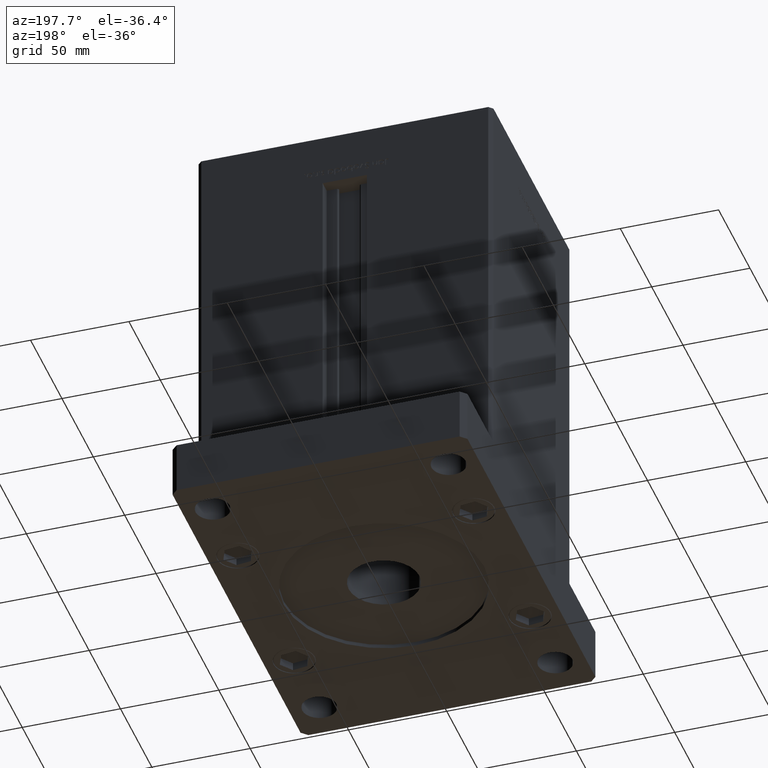
[diagram: clean part render]
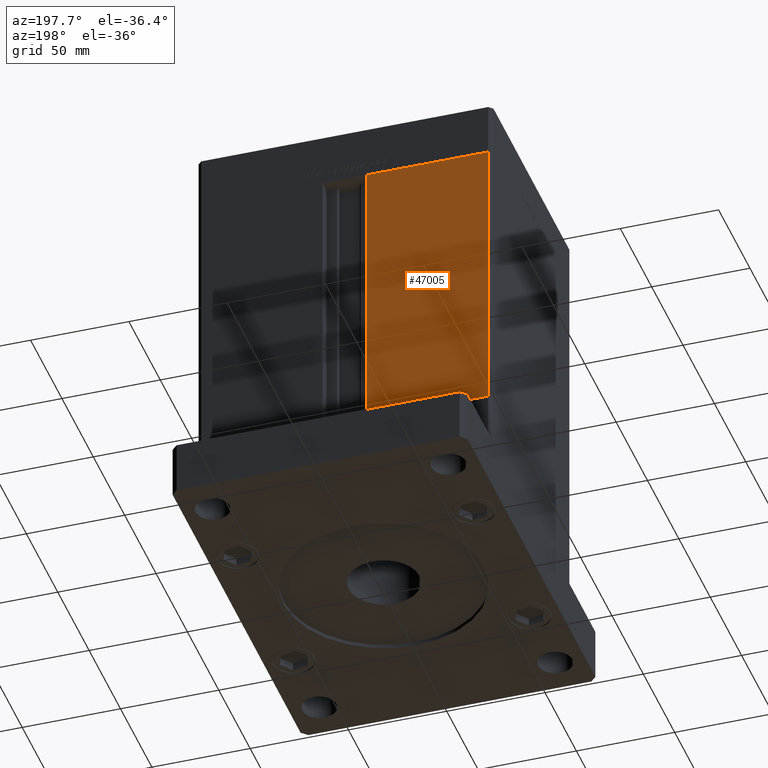
[diagram: same view with one face highlighted and labeled with its STEP entity id]
A machine part, auxiliary view. The second image highlights one B-rep face of the part: STEP entity #47005.
In plain terms, the highlighted planar face has unit normal (-0, -1, 0).
Its self-contained STEP definition (entity closure, byte-faithful):
#482 = VECTOR ( 'NONE', #23120, 1000.000000000000000 ) ;
#884 = CARTESIAN_POINT ( 'NONE',  ( -11.25000000000000178, 62.49999999999999289, 147.0000000000000000 ) ) ;
#2424 = EDGE_CURVE ( 'NONE', #6817, #17912, #37445, .T. ) ;
#4222 = CARTESIAN_POINT ( 'NONE',  ( -11.25000000000000178, 62.49999999999999289, 0.000000000000000000 ) ) ;
#4382 = DIRECTION ( 'NONE',  ( -1.000000000000000000, 1.123707514802790025E-16, 0.000000000000000000 ) ) ;
#4655 = FACE_OUTER_BOUND ( 'NONE', #12086, .T. ) ;
#6817 = VERTEX_POINT ( 'NONE', #52251 ) ;
#6885 = EDGE_CURVE ( 'NONE', #18046, #17912, #48443, .T. ) ;
#7663 = DIRECTION ( 'NONE',  ( 1.000000000000000000, -1.123707514802790025E-16, 0.000000000000000000 ) ) ;
#10398 = VECTOR ( 'NONE', #4382, 1000.000000000000000 ) ;
#12086 = EDGE_LOOP ( 'NONE', ( #41639, #16622, #46976, #33117 ) ) ;
#15104 = LINE ( 'NONE', #31659, #24729 ) ;
#16622 = ORIENTED_EDGE ( 'NONE', *, *, #31285, .F. ) ;
#17912 = VERTEX_POINT ( 'NONE', #44691 ) ;
#18046 = VERTEX_POINT ( 'NONE', #4222 ) ;
#20062 = VERTEX_POINT ( 'NONE', #884 ) ;
#20946 = CARTESIAN_POINT ( 'NONE',  ( -11.25000000000000178, 62.49999999999999289, 0.000000000000000000 ) ) ;
#21226 = PLANE ( 'NONE',  #50496 ) ;
#23120 = DIRECTION ( 'NONE',  ( -0.000000000000000000, -0.000000000000000000, 1.000000000000000000 ) ) ;
#24166 = CARTESIAN_POINT ( 'NONE',  ( -73.00000000000001421, 62.50000000000000000, 147.0000000000000000 ) ) ;
#24729 = VECTOR ( 'NONE', #48230, 1000.000000000000000 ) ;
#24749 = CARTESIAN_POINT ( 'NONE',  ( -11.25000000000000178, 62.49999999999999289, 147.0000000000000000 ) ) ;
#26120 = EDGE_CURVE ( 'NONE', #6817, #20062, #15104, .T. ) ;
#30228 = VECTOR ( 'NONE', #40723, 1000.000000000000000 ) ;
#31285 = EDGE_CURVE ( 'NONE', #18046, #20062, #44831, .T. ) ;
#31659 = CARTESIAN_POINT ( 'NONE',  ( -11.25000000000000178, 62.49999999999999289, 147.0000000000000000 ) ) ;
#33117 = ORIENTED_EDGE ( 'NONE', *, *, #2424, .F. ) ;
#37445 = LINE ( 'NONE', #24166, #30228 ) ;
#37750 = DIRECTION ( 'NONE',  ( -1.123707514802790025E-16, -1.000000000000000000, 0.000000000000000000 ) ) ;
#40723 = DIRECTION ( 'NONE',  ( -0.000000000000000000, -0.000000000000000000, -1.000000000000000000 ) ) ;
#41639 = ORIENTED_EDGE ( 'NONE', *, *, #26120, .T. ) ;
#44691 = CARTESIAN_POINT ( 'NONE',  ( -73.00000000000001421, 62.50000000000000000, 0.000000000000000000 ) ) ;
#44831 = LINE ( 'NONE', #51891, #482 ) ;
#46976 = ORIENTED_EDGE ( 'NONE', *, *, #6885, .T. ) ;
#47005 = ADVANCED_FACE ( 'NONE', ( #4655 ), #21226, .F. ) ;
#48230 = DIRECTION ( 'NONE',  ( 1.000000000000000000, 0.000000000000000000, 0.000000000000000000 ) ) ;
#48443 = LINE ( 'NONE', #20946, #10398 ) ;
#50496 = AXIS2_PLACEMENT_3D ( 'NONE', #24749, #37750, #7663 ) ;
#51891 = CARTESIAN_POINT ( 'NONE',  ( -11.25000000000000178, 62.49999999999999289, 0.000000000000000000 ) ) ;
#52251 = CARTESIAN_POINT ( 'NONE',  ( -73.00000000000001421, 62.50000000000000000, 147.0000000000000000 ) ) ;